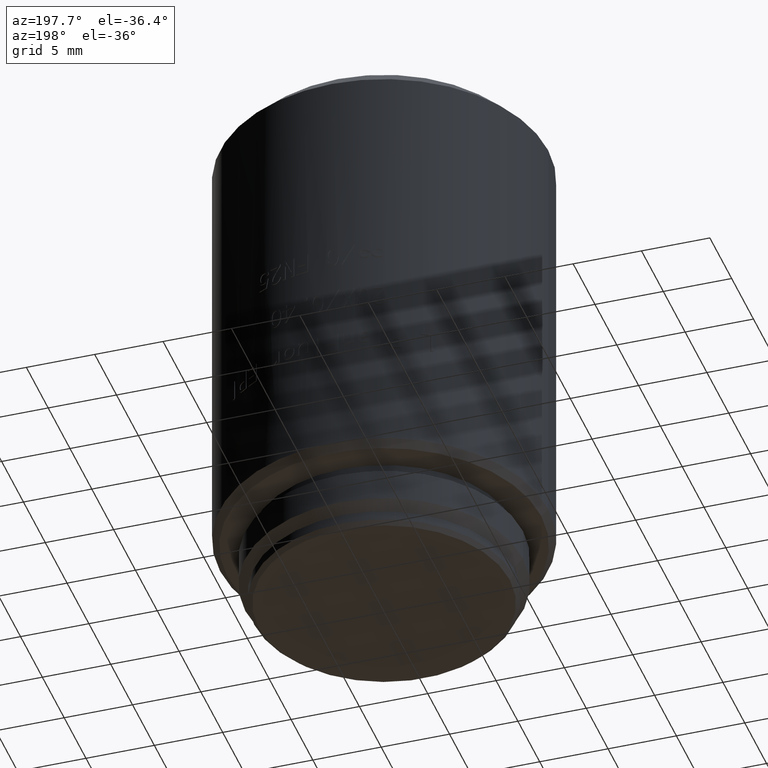
[diagram: clean part render]
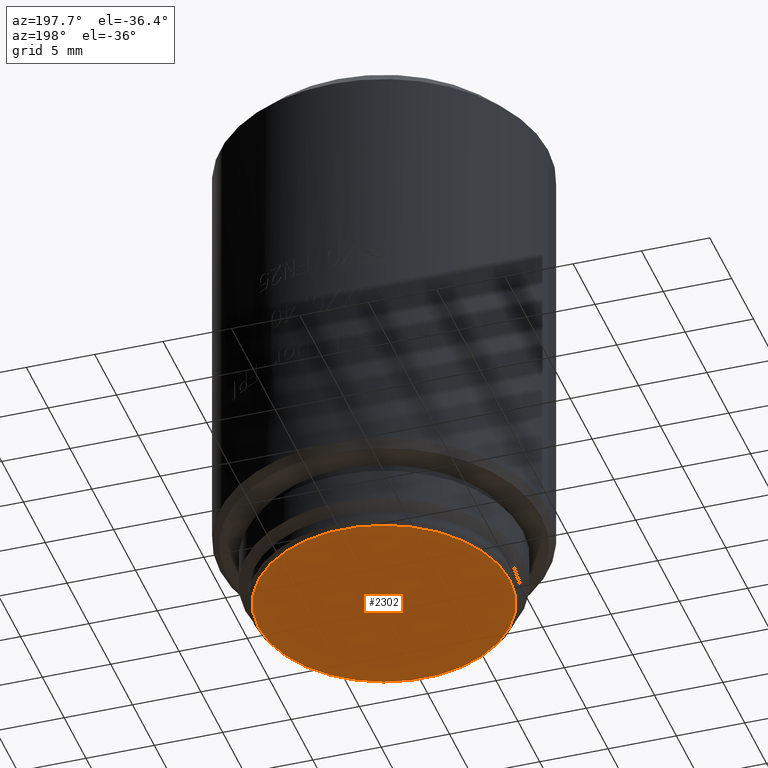
[diagram: same view with one face highlighted and labeled with its STEP entity id]
A machine part, auxiliary view. The second image highlights one B-rep face of the part: STEP entity #2302.
In plain terms, the highlighted planar face has unit normal (0, 0, 1).
Its self-contained STEP definition (entity closure, byte-faithful):
#1607 = ORIENTED_EDGE ( 'NONE', *, *, #16825, .T. ) ;
#2132 = EDGE_LOOP ( 'NONE', ( #12526, #1607 ) ) ;
#2302 = ADVANCED_FACE ( 'NONE', ( #20566 ), #19107, .F. ) ;
#3931 = DIRECTION ( 'NONE',  ( 0.000000000000000000, 0.000000000000000000, 1.000000000000000000 ) ) ;
#4173 = DIRECTION ( 'NONE',  ( 0.000000000000000000, 0.000000000000000000, -1.000000000000000000 ) ) ;
#5990 = DIRECTION ( 'NONE',  ( 1.000000000000000000, 0.000000000000000000, 0.000000000000000000 ) ) ;
#6107 = CARTESIAN_POINT ( 'NONE',  ( 0.000000000000000000, 0.000000000000000000, 0.000000000000000000 ) ) ;
#6564 = DIRECTION ( 'NONE',  ( 1.000000000000000000, 0.000000000000000000, 0.000000000000000000 ) ) ;
#7542 = CIRCLE ( 'NONE', #22293, 9.199999999999999289 ) ;
#7678 = DIRECTION ( 'NONE',  ( 1.000000000000000000, 0.000000000000000000, 0.000000000000000000 ) ) ;
#8048 = CARTESIAN_POINT ( 'NONE',  ( 0.000000000000000000, 0.000000000000000000, 0.000000000000000000 ) ) ;
#12526 = ORIENTED_EDGE ( 'NONE', *, *, #20331, .T. ) ;
#15358 = VERTEX_POINT ( 'NONE', #22082 ) ;
#15819 = VERTEX_POINT ( 'NONE', #19972 ) ;
#16049 = DIRECTION ( 'NONE',  ( 0.000000000000000000, 0.000000000000000000, -1.000000000000000000 ) ) ;
#16401 = AXIS2_PLACEMENT_3D ( 'NONE', #8048, #3931, #7678 ) ;
#16825 = EDGE_CURVE ( 'NONE', #15819, #15358, #20294, .T. ) ;
#17581 = AXIS2_PLACEMENT_3D ( 'NONE', #17994, #16049, #6564 ) ;
#17994 = CARTESIAN_POINT ( 'NONE',  ( 0.000000000000000000, 0.000000000000000000, 0.000000000000000000 ) ) ;
#19107 = PLANE ( 'NONE',  #16401 ) ;
#19972 = CARTESIAN_POINT ( 'NONE',  ( -9.199999999999999289, 1.145044757202775252E-15, 0.000000000000000000 ) ) ;
#20294 = CIRCLE ( 'NONE', #17581, 9.199999999999999289 ) ;
#20331 = EDGE_CURVE ( 'NONE', #15358, #15819, #7542, .T. ) ;
#20566 = FACE_OUTER_BOUND ( 'NONE', #2132, .T. ) ;
#22082 = CARTESIAN_POINT ( 'NONE',  ( 9.199999999999999289, 0.000000000000000000, 0.000000000000000000 ) ) ;
#22293 = AXIS2_PLACEMENT_3D ( 'NONE', #6107, #4173, #5990 ) ;